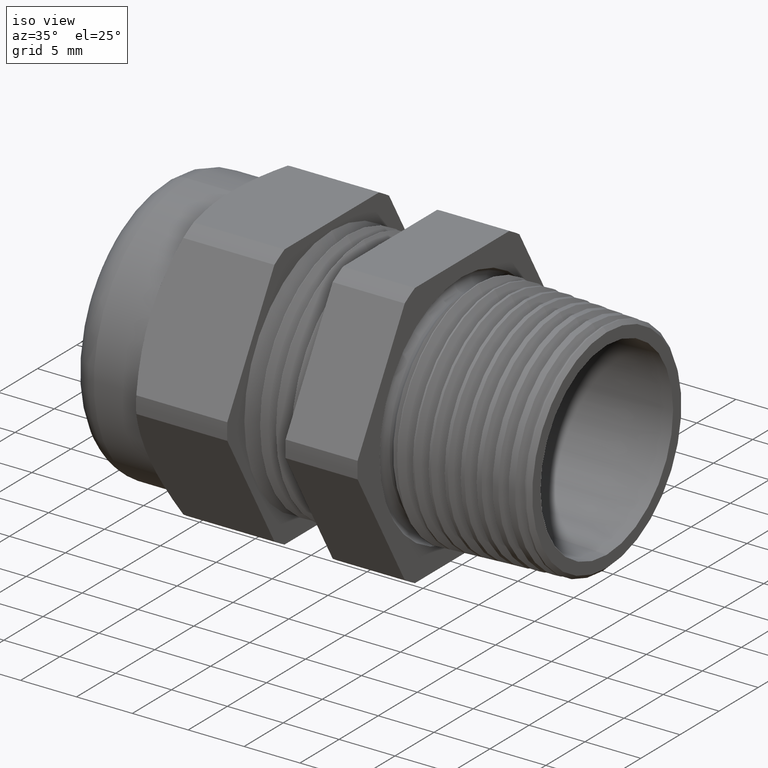
[diagram: clean part render]
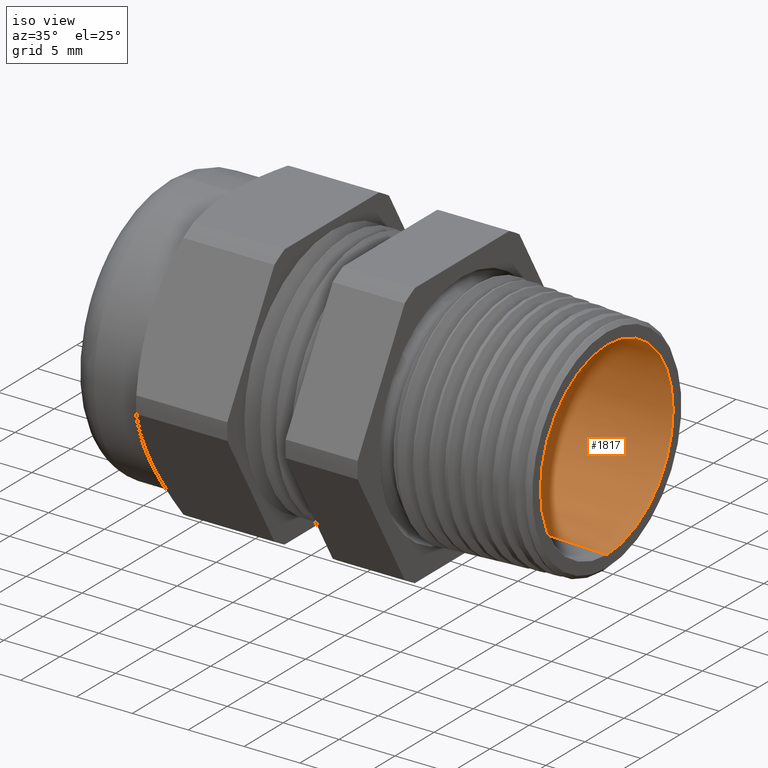
[diagram: same view with one face highlighted and labeled with its STEP entity id]
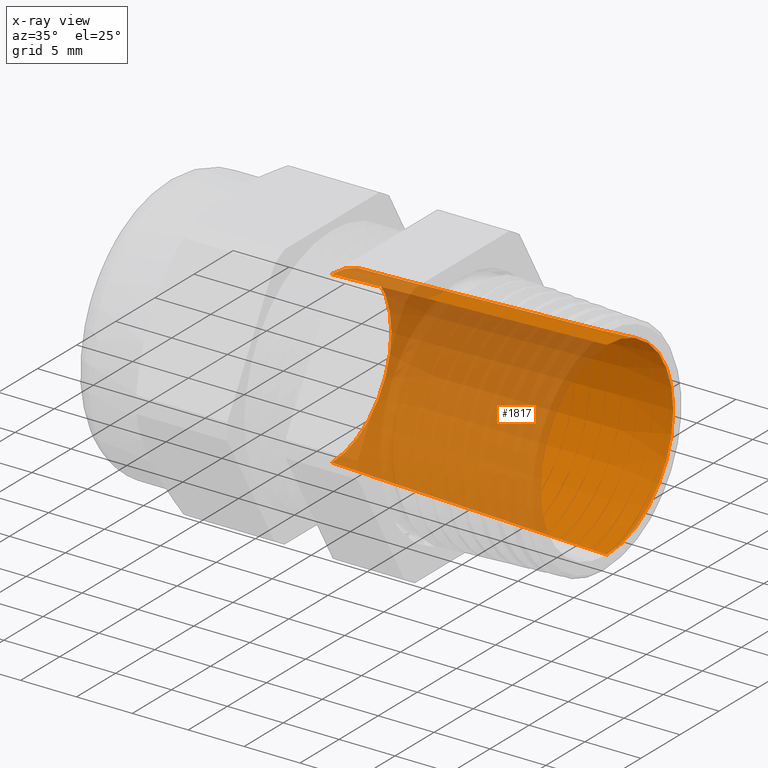
[diagram: x-ray of the same camera — body ghosted, the highlighted face saturated]
A machine part, iso view. The second image highlights one B-rep face of the part: STEP entity #1817.
The next image is the same camera in x-ray: the body ghosted, the highlighted face saturated — about 62% of this face is hidden behind the body in this view.
In plain terms, the highlighted conical surface has half-angle 2 deg.
Its self-contained STEP definition (entity closure, byte-faithful):
#90 = EDGE_CURVE ( 'NONE', #253, #101, #690, .T. ) ;
#101 = VERTEX_POINT ( 'NONE', #729 ) ;
#112 = VERTEX_POINT ( 'NONE', #718 ) ;
#119 = EDGE_CURVE ( 'NONE', #245, #112, #768, .T. ) ;
#245 = VERTEX_POINT ( 'NONE', #1011 ) ;
#253 = VERTEX_POINT ( 'NONE', #1006 ) ;
#682 = DIRECTION ( 'NONE',  ( 0.9993908270190957600, 0.0000000000000000000, -0.03489949670250173900 ) ) ;
#683 = VECTOR ( 'NONE', #682, 39.37007874015748900 ) ;
#684 = CARTESIAN_POINT ( 'NONE',  ( -0.4591666666666666700, 0.0000000000000000000, -0.2999999999999999900 ) ) ;
#690 = LINE ( 'NONE', #684, #683 ) ;
#718 = CARTESIAN_POINT ( 'NONE',  ( 0.5100000000000000100, 4.088410420614317000E-017, 0.3338440457657528800 ) ) ;
#729 = CARTESIAN_POINT ( 'NONE',  ( 0.5100000000000000100, 0.0000000000000000000, -0.3338440457657528800 ) ) ;
#761 = DIRECTION ( 'NONE',  ( 0.9993908270190957600, 4.273955692857236600E-018, 0.03489949670250173900 ) ) ;
#762 = VECTOR ( 'NONE', #761, 39.37007874015748900 ) ;
#763 = CARTESIAN_POINT ( 'NONE',  ( -0.4591666666666666700, 3.673940397442058900E-017, 0.2999999999999999900 ) ) ;
#768 = LINE ( 'NONE', #763, #762 ) ;
#1006 = CARTESIAN_POINT ( 'NONE',  ( -0.4591666666666666700, 0.0000000000000000000, -0.2999999999999999900 ) ) ;
#1011 = CARTESIAN_POINT ( 'NONE',  ( -0.4591666666666666700, 3.881175409028188200E-017, 0.2999999999999999900 ) ) ;
#1577 = EDGE_LOOP ( 'NONE', ( #1596, #1592, #1578, #3647 ) ) ;
#1578 = ORIENTED_EDGE ( 'NONE', *, *, #90, .T. ) ;
#1592 = ORIENTED_EDGE ( 'NONE', *, *, #1595, .T. ) ;
#1595 = EDGE_CURVE ( 'NONE', #245, #253, #2692, .T. ) ;
#1596 = ORIENTED_EDGE ( 'NONE', *, *, #119, .F. ) ;
#1776 = EDGE_CURVE ( 'NONE', #112, #101, #2879, .T. ) ;
#1817 = ADVANCED_FACE ( 'NONE', ( #2999 ), #2998, .F. ) ;
#2688 = DIRECTION ( 'NONE',  ( 0.0000000000000000000, 0.0000000000000000000, 1.000000000000000000 ) ) ;
#2689 = DIRECTION ( 'NONE',  ( -1.000000000000000000, 0.0000000000000000000, 0.0000000000000000000 ) ) ;
#2690 = CARTESIAN_POINT ( 'NONE',  ( -0.4591666666666666700, 0.0000000000000000000, 0.0000000000000000000 ) ) ;
#2691 = AXIS2_PLACEMENT_3D ( 'NONE', #2690, #2689, #2688 ) ;
#2692 = CIRCLE ( 'NONE', #2691, 0.2999999999999999900 ) ;
#2876 = DIRECTION ( 'NONE',  ( 0.0000000000000000000, 0.0000000000000000000, 1.000000000000000000 ) ) ;
#2877 = DIRECTION ( 'NONE',  ( -1.000000000000000000, 0.0000000000000000000, 0.0000000000000000000 ) ) ;
#2878 = AXIS2_PLACEMENT_3D ( 'NONE', #2884, #2877, #2876 ) ;
#2879 = CIRCLE ( 'NONE', #2878, 0.3338440457657528800 ) ;
#2884 = CARTESIAN_POINT ( 'NONE',  ( 0.5100000000000000100, 0.0000000000000000000, 0.0000000000000000000 ) ) ;
#2993 = DIRECTION ( 'NONE',  ( 0.0000000000000000000, 0.0000000000000000000, -1.000000000000000000 ) ) ;
#2994 = DIRECTION ( 'NONE',  ( 1.000000000000000000, 0.0000000000000000000, 0.0000000000000000000 ) ) ;
#2995 = CARTESIAN_POINT ( 'NONE',  ( -0.4591666666666666700, 0.0000000000000000000, 0.0000000000000000000 ) ) ;
#2996 = AXIS2_PLACEMENT_3D ( 'NONE', #2995, #2994, #2993 ) ;
#2998 = CONICAL_SURFACE ( 'NONE', #2996, 0.2999999999999999900, 0.03490658503988736100 ) ;
#2999 = FACE_OUTER_BOUND ( 'NONE', #1577, .T. ) ;
#3647 = ORIENTED_EDGE ( 'NONE', *, *, #1776, .F. ) ;